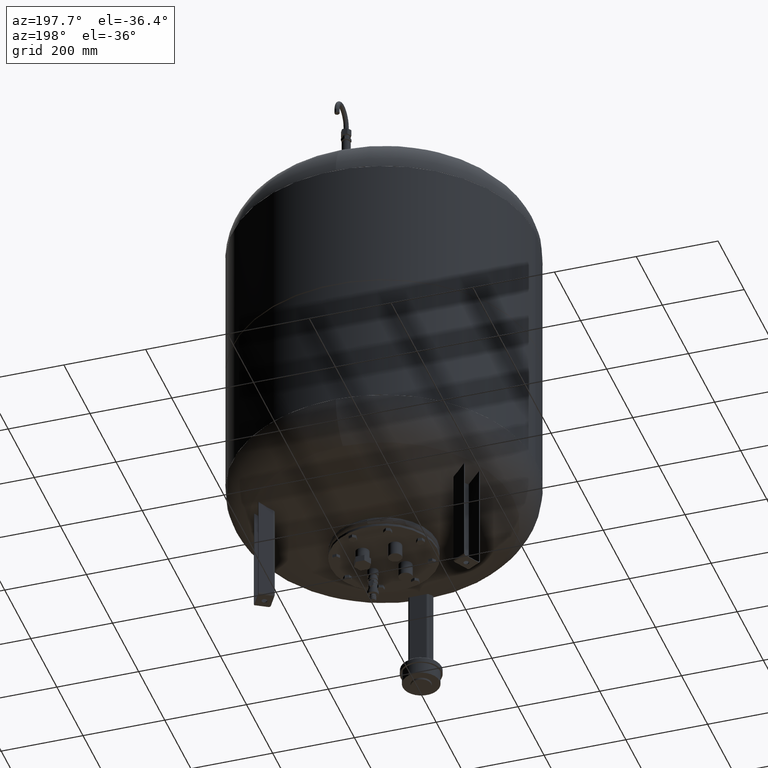
[diagram: clean part render]
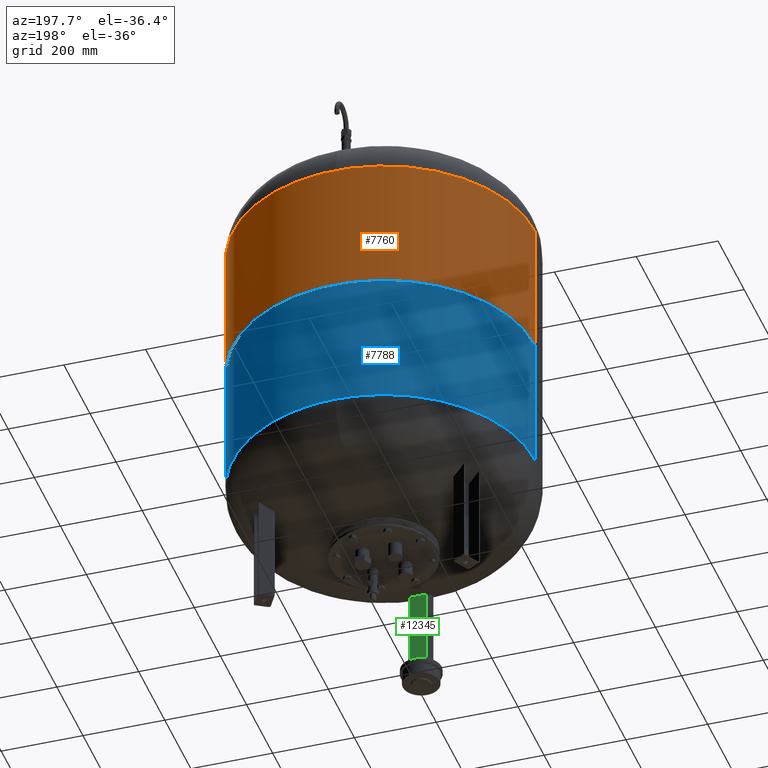
[diagram: same view with three faces highlighted in distinct colors, each labeled with its STEP entity id]
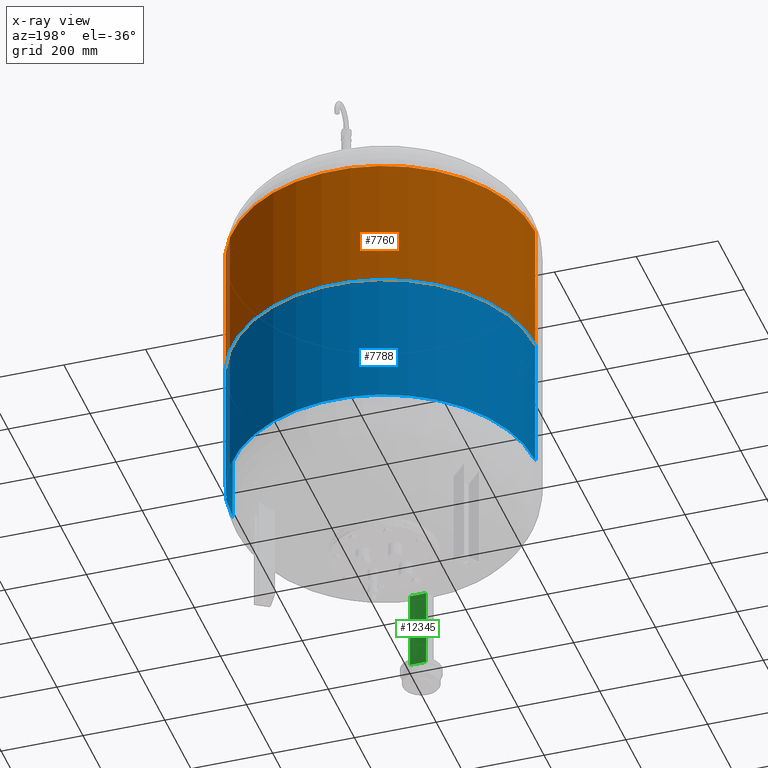
[diagram: x-ray of the same camera — body ghosted, the three highlighted faces saturated]
A machine part, auxiliary view with three faces highlighted in distinct colors.
The next image is the same camera in x-ray (body ghosted, the three faces saturated) — at least one of them is partly hidden behind the body in this view.
Their STEP definitions:

[orange] entity #7760 — the highlighted cylindrical surface (partial cylindrical patch) has radius 370 mm, axis along (0, 0, 1).
#7630=CARTESIAN_POINT('',(370.0,0.0,1031.0));
#7631=VERTEX_POINT('',#7630);
#7632=CARTESIAN_POINT('',(369.999999999999770,0.0,703.0));
#7633=VERTEX_POINT('',#7632);
#7634=CARTESIAN_POINT('',(370.0,0.0,1031.0));
#7635=DIRECTION('',(0.0,0.0,-1.0));
#7636=VECTOR('',#7635,328.0);
#7637=LINE('',#7634,#7636);
#7638=EDGE_CURVE('',#7631,#7633,#7637,.T.);
#7640=CARTESIAN_POINT('',(-370.0,-4.531044E-014,1031.0));
#7641=VERTEX_POINT('',#7640);
#7649=CARTESIAN_POINT('',(-369.999999999999770,-4.531044E-014,703.0));
#7650=VERTEX_POINT('',#7649);
#7651=CARTESIAN_POINT('',(-370.0,-4.531044E-014,1031.0));
#7652=DIRECTION('',(0.0,0.0,-1.0));
#7653=VECTOR('',#7652,328.0);
#7654=LINE('',#7651,#7653);
#7655=EDGE_CURVE('',#7641,#7650,#7654,.T.);
#7733=CARTESIAN_POINT('',(1.535702E-016,0.0,703.0));
#7734=DIRECTION('',(0.0,0.0,1.0));
#7735=DIRECTION('',(1.0,0.0,0.0));
#7736=AXIS2_PLACEMENT_3D('',#7733,#7734,#7735);
#7737=CIRCLE('',#7736,369.999999999999770);
#7738=EDGE_CURVE('',#7633,#7650,#7737,.T.);
#7743=CARTESIAN_POINT('',(1.668796E-014,0.0,1028.500000000000000));
#7744=DIRECTION('',(0.0,0.0,1.0));
#7745=DIRECTION('',(1.0,0.0,0.0));
#7746=AXIS2_PLACEMENT_3D('',#7743,#7744,#7745);
#7747=CYLINDRICAL_SURFACE('',#7746,370.0);
#7748=ORIENTED_EDGE('',*,*,#7638,.T.);
#7749=ORIENTED_EDGE('',*,*,#7738,.T.);
#7750=ORIENTED_EDGE('',*,*,#7655,.F.);
#7751=CARTESIAN_POINT('',(1.668796E-014,0.0,1031.0));
#7752=DIRECTION('',(0.0,0.0,1.0));
#7753=DIRECTION('',(1.0,0.0,0.0));
#7754=AXIS2_PLACEMENT_3D('',#7751,#7752,#7753);
#7755=CIRCLE('',#7754,370.0);
#7756=EDGE_CURVE('',#7631,#7641,#7755,.T.);
#7757=ORIENTED_EDGE('',*,*,#7756,.F.);
#7758=EDGE_LOOP('',(#7748,#7749,#7750,#7757));
#7759=FACE_OUTER_BOUND('',#7758,.T.);
#7760=ADVANCED_FACE('',(#7759),#7747,.T.);

[blue] entity #7788 — the highlighted cylindrical surface (partial cylindrical patch) has radius 370 mm, axis along (0, 0, 1).
#7588=CARTESIAN_POINT('',(369.999999999999770,0.0,700.0));
#7589=VERTEX_POINT('',#7588);
#7590=CARTESIAN_POINT('',(370.0,0.0,369.0));
#7591=VERTEX_POINT('',#7590);
#7592=CARTESIAN_POINT('',(369.999999999999770,0.0,700.0));
#7593=DIRECTION('',(0.0,0.0,-1.0));
#7594=VECTOR('',#7593,331.0);
#7595=LINE('',#7592,#7594);
#7596=EDGE_CURVE('',#7589,#7591,#7595,.T.);
#7598=CARTESIAN_POINT('',(-370.0,-4.531044E-014,700.0));
#7599=VERTEX_POINT('',#7598);
#7607=CARTESIAN_POINT('',(-370.0,-4.531044E-014,369.0));
#7608=VERTEX_POINT('',#7607);
#7609=CARTESIAN_POINT('',(-370.0,-4.531044E-014,700.0));
#7610=DIRECTION('',(0.0,0.0,-1.0));
#7611=VECTOR('',#7610,331.0);
#7612=LINE('',#7609,#7611);
#7613=EDGE_CURVE('',#7599,#7608,#7612,.T.);
#7704=CARTESIAN_POINT('',(0.0,0.0,700.0));
#7705=DIRECTION('',(0.0,0.0,1.0));
#7706=DIRECTION('',(1.0,0.0,0.0));
#7707=AXIS2_PLACEMENT_3D('',#7704,#7705,#7706);
#7708=CIRCLE('',#7707,369.999999999999770);
#7709=EDGE_CURVE('',#7589,#7599,#7708,.T.);
#7771=CARTESIAN_POINT('',(-1.668796E-014,0.0,371.500000000000000));
#7772=DIRECTION('',(0.0,0.0,1.0));
#7773=DIRECTION('',(1.0,0.0,0.0));
#7774=AXIS2_PLACEMENT_3D('',#7771,#7772,#7773);
#7775=CYLINDRICAL_SURFACE('',#7774,370.0);
#7776=ORIENTED_EDGE('',*,*,#7596,.T.);
#7777=CARTESIAN_POINT('',(-1.668796E-014,0.0,369.0));
#7778=DIRECTION('',(0.0,0.0,-1.0));
#7779=DIRECTION('',(1.0,0.0,0.0));
#7780=AXIS2_PLACEMENT_3D('',#7777,#7778,#7779);
#7781=CIRCLE('',#7780,370.0);
#7782=EDGE_CURVE('',#7608,#7591,#7781,.T.);
#7783=ORIENTED_EDGE('',*,*,#7782,.F.);
#7784=ORIENTED_EDGE('',*,*,#7613,.F.);
#7785=ORIENTED_EDGE('',*,*,#7709,.F.);
#7786=EDGE_LOOP('',(#7776,#7783,#7784,#7785));
#7787=FACE_OUTER_BOUND('',#7786,.T.);
#7788=ADVANCED_FACE('',(#7787),#7775,.T.);

[green] entity #12345 — the highlighted planar face has unit normal (0, 1, 0).
#12024=CARTESIAN_POINT('',(-20.000000000000004,-260.0,245.244902148980940));
#12025=VERTEX_POINT('',#12024);
#12159=CARTESIAN_POINT('',(19.999999999999996,-260.0,245.244902148980940));
#12160=VERTEX_POINT('',#12159);
#12183=CARTESIAN_POINT('',(-6.193884E-014,-260.0,705.0));
#12184=DIRECTION('',(0.0,-1.0,0.0));
#12185=DIRECTION('',(0.0,0.0,-1.0));
#12186=AXIS2_PLACEMENT_3D('',#12183,#12184,#12185);
#12187=CIRCLE('',#12186,460.189906451673610);
#12188=EDGE_CURVE('',#12025,#12160,#12187,.T.);
#12302=CARTESIAN_POINT('',(-20.000000000000004,-260.0,45.999999999999979));
#12303=VERTEX_POINT('',#12302);
#12304=CARTESIAN_POINT('',(-20.000000000000004,-260.0,245.244902148980940));
#12305=DIRECTION('',(0.0,0.0,-1.0));
#12306=VECTOR('',#12305,199.244902148980970);
#12307=LINE('',#12304,#12306);
#12308=EDGE_CURVE('',#12025,#12303,#12307,.T.);
#12322=CARTESIAN_POINT('',(-25.000000000000004,-260.0,45.999999999999979));
#12323=DIRECTION('',(0.0,1.0,0.0));
#12324=DIRECTION('',(-1.0,0.0,0.0));
#12325=AXIS2_PLACEMENT_3D('',#12322,#12323,#12324);
#12326=PLANE('',#12325);
#12327=CARTESIAN_POINT('',(19.999999999999996,-260.0,45.999999999999979));
#12328=VERTEX_POINT('',#12327);
#12329=CARTESIAN_POINT('',(19.999999999999996,-260.0,45.999999999999979));
#12330=DIRECTION('',(0.0,0.0,1.0));
#12331=VECTOR('',#12330,199.244902148980970);
#12332=LINE('',#12329,#12331);
#12333=EDGE_CURVE('',#12328,#12160,#12332,.T.);
#12334=ORIENTED_EDGE('',*,*,#12333,.F.);
#12335=CARTESIAN_POINT('',(-20.000000000000004,-260.0,45.999999999999979));
#12336=DIRECTION('',(1.0,0.0,0.0));
#12337=VECTOR('',#12336,40.0);
#12338=LINE('',#12335,#12337);
#12339=EDGE_CURVE('',#12303,#12328,#12338,.T.);
#12340=ORIENTED_EDGE('',*,*,#12339,.F.);
#12341=ORIENTED_EDGE('',*,*,#12308,.F.);
#12342=ORIENTED_EDGE('',*,*,#12188,.T.);
#12343=EDGE_LOOP('',(#12334,#12340,#12341,#12342));
#12344=FACE_OUTER_BOUND('',#12343,.T.);
#12345=ADVANCED_FACE('',(#12344),#12326,.T.);